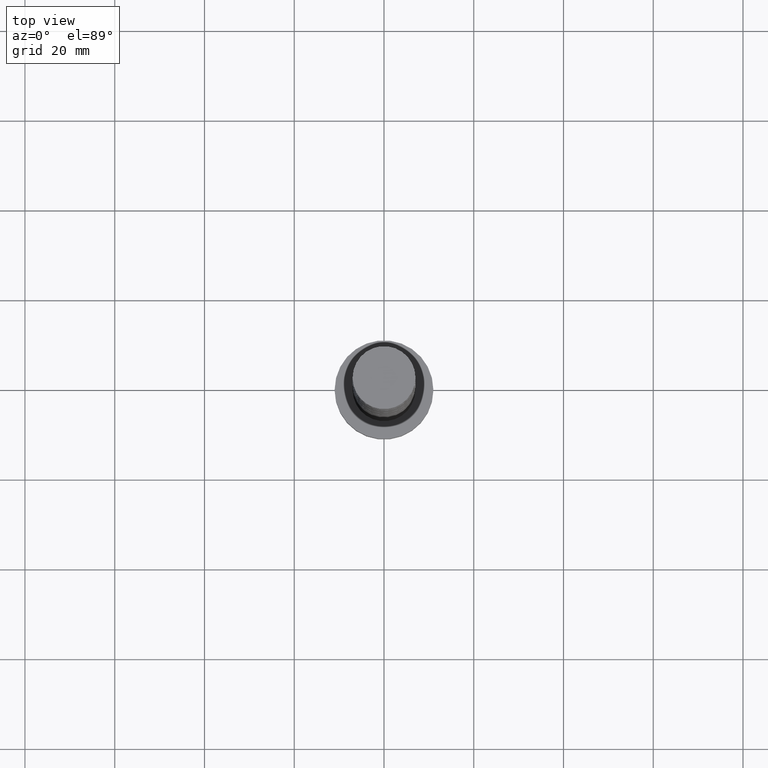
[diagram: clean part render]
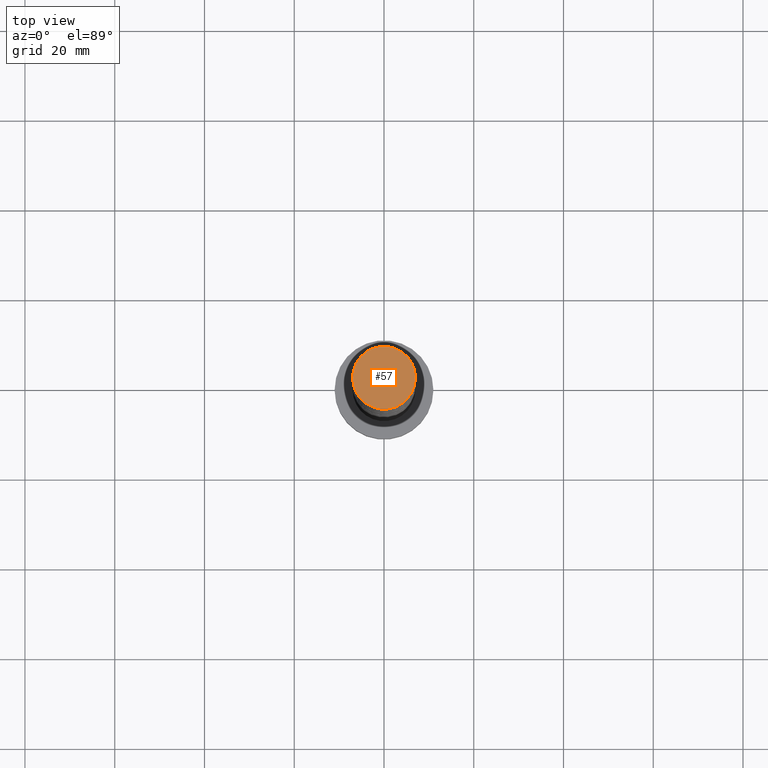
[diagram: same view with one face highlighted and labeled with its STEP entity id]
A machine part, top view. The second image highlights one B-rep face of the part: STEP entity #57.
In plain terms, the highlighted planar face has unit normal (0, 0, 1).
Its self-contained STEP definition (entity closure, byte-faithful):
#51 = ORIENTED_EDGE ( 'NONE', *, *, #1035, .T. ) ;
#57 = ADVANCED_FACE ( 'NONE', ( #799 ), #1404, .T. ) ;
#60 = ORIENTED_EDGE ( 'NONE', *, *, #260, .T. ) ;
#98 = DIRECTION ( 'NONE',  ( 1.000000000000000000, 0.000000000000000000, 0.000000000000000000 ) ) ;
#213 = AXIS2_PLACEMENT_3D ( 'NONE', #547, #376, #1093 ) ;
#253 = CARTESIAN_POINT ( 'NONE',  ( 0.000000000000000000, 0.000000000000000000, 160.0000000000000000 ) ) ;
#260 = EDGE_CURVE ( 'NONE', #922, #647, #1319, .T. ) ;
#268 = DIRECTION ( 'NONE',  ( 0.000000000000000000, 0.000000000000000000, 1.000000000000000000 ) ) ;
#288 = DIRECTION ( 'NONE',  ( 1.000000000000000000, 0.000000000000000000, -0.000000000000000000 ) ) ;
#292 = EDGE_LOOP ( 'NONE', ( #60, #51 ) ) ;
#376 = DIRECTION ( 'NONE',  ( 0.000000000000000000, 0.000000000000000000, 1.000000000000000000 ) ) ;
#547 = CARTESIAN_POINT ( 'NONE',  ( 0.000000000000000000, 0.000000000000000000, 160.0000000000000000 ) ) ;
#562 = AXIS2_PLACEMENT_3D ( 'NONE', #253, #268, #288 ) ;
#647 = VERTEX_POINT ( 'NONE', #1260 ) ;
#652 = AXIS2_PLACEMENT_3D ( 'NONE', #1514, #1242, #98 ) ;
#799 = FACE_OUTER_BOUND ( 'NONE', #292, .T. ) ;
#922 = VERTEX_POINT ( 'NONE', #1083 ) ;
#1035 = EDGE_CURVE ( 'NONE', #647, #922, #1387, .T. ) ;
#1083 = CARTESIAN_POINT ( 'NONE',  ( -7.000000000000000888, 0.000000000000000000, 160.0000000000000000 ) ) ;
#1093 = DIRECTION ( 'NONE',  ( 1.000000000000000000, 0.000000000000000000, 0.000000000000000000 ) ) ;
#1242 = DIRECTION ( 'NONE',  ( 0.000000000000000000, 0.000000000000000000, 1.000000000000000000 ) ) ;
#1260 = CARTESIAN_POINT ( 'NONE',  ( 7.000000000000000888, 8.572527594031474176E-16, 160.0000000000000000 ) ) ;
#1319 = CIRCLE ( 'NONE', #213, 7.000000000000000888 ) ;
#1387 = CIRCLE ( 'NONE', #652, 7.000000000000000888 ) ;
#1404 = PLANE ( 'NONE',  #562 ) ;
#1514 = CARTESIAN_POINT ( 'NONE',  ( 0.000000000000000000, 0.000000000000000000, 160.0000000000000000 ) ) ;